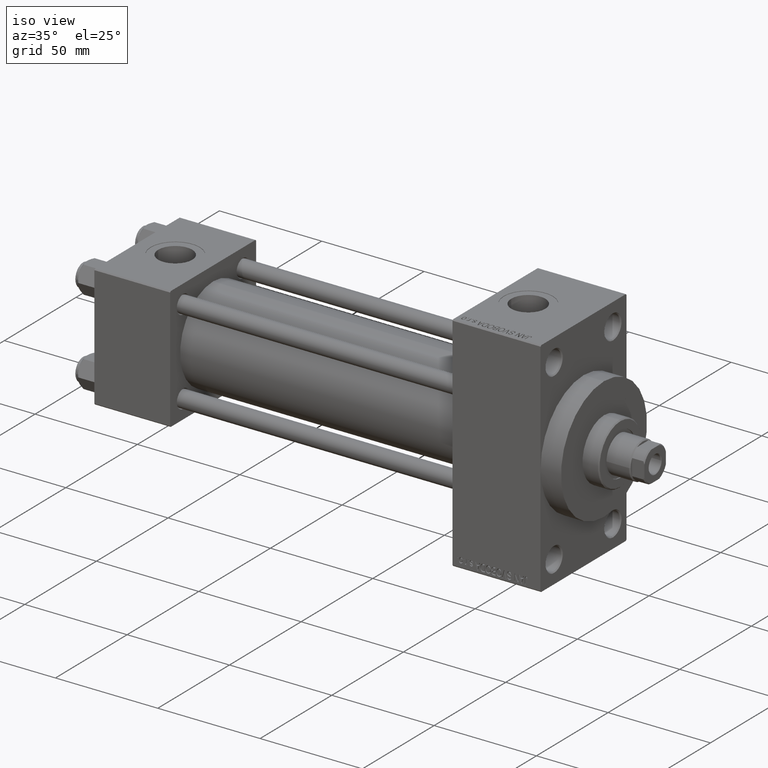
[diagram: clean part render]
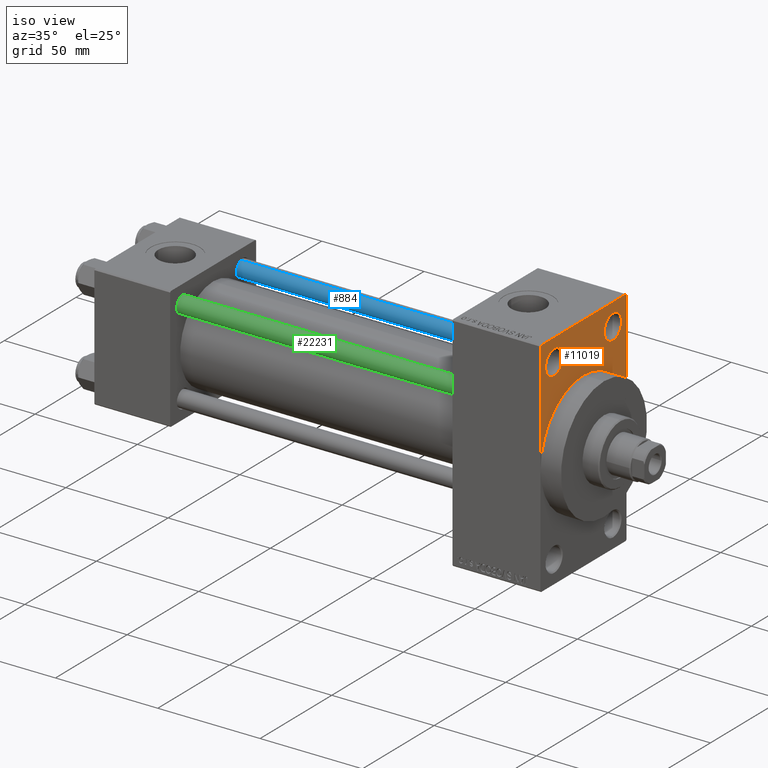
[diagram: same view with three faces highlighted in distinct colors, each labeled with its STEP entity id]
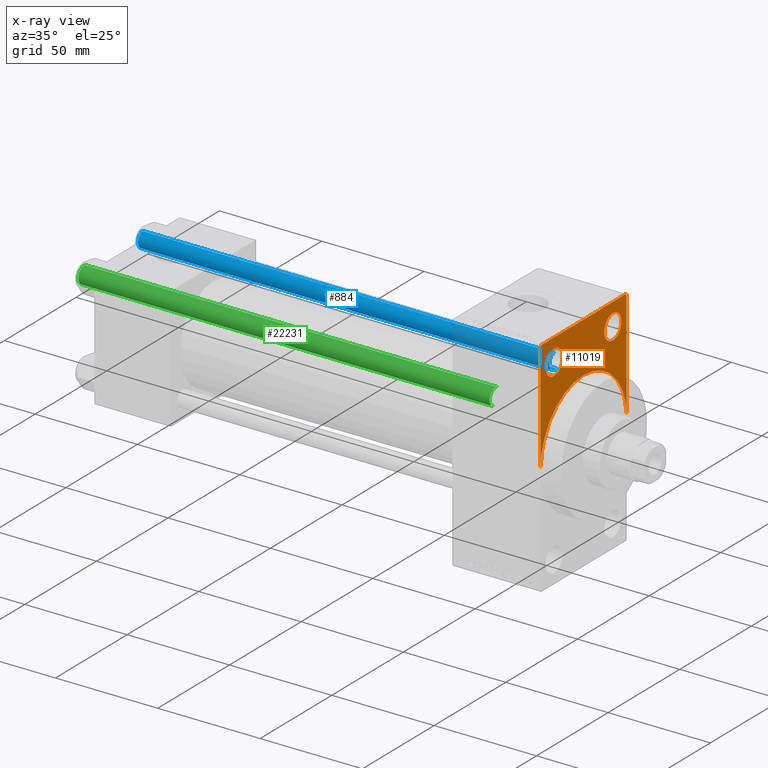
[diagram: x-ray of the same camera — body ghosted, the three highlighted faces saturated]
A machine part, iso view with three faces highlighted in distinct colors.
The next image is the same camera in x-ray (body ghosted, the three faces saturated) — at least one of them is partly hidden behind the body in this view.
Their STEP definitions:

[orange] entity #11019 — the highlighted planar face has unit normal (-1, 0, 0).
#2873 = EDGE_CURVE ( 'NONE', #38933, #22216, #42119, .T. ) ;
#3027 = EDGE_CURVE ( 'NONE', #10872, #10121, #15967, .T. ) ;
#4540 = AXIS2_PLACEMENT_3D ( 'NONE', #34424, #9583, #23684 ) ;
#4573 = DIRECTION ( 'NONE',  ( -1.000000000000000000, 0.000000000000000000, -0.000000000000000000 ) ) ;
#4917 = ORIENTED_EDGE ( 'NONE', *, *, #38871, .T. ) ;
#5412 = VECTOR ( 'NONE', #32607, 1000.000000000000000 ) ;
#5444 = LINE ( 'NONE', #20032, #38107 ) ;
#5648 = ORIENTED_EDGE ( 'NONE', *, *, #16416, .T. ) ;
#6281 = ORIENTED_EDGE ( 'NONE', *, *, #46970, .F. ) ;
#6297 = DIRECTION ( 'NONE',  ( 0.000000000000000000, 0.000000000000000000, 1.000000000000000000 ) ) ;
#6305 = CARTESIAN_POINT ( 'NONE',  ( 218.0000000000000284, 0.000000000000000000, 0.000000000000000000 ) ) ;
#6572 = AXIS2_PLACEMENT_3D ( 'NONE', #9553, #38213, #16722 ) ;
#6580 = EDGE_CURVE ( 'NONE', #22216, #35180, #29935, .T. ) ;
#7721 = CARTESIAN_POINT ( 'NONE',  ( 218.0000000000000284, -30.00000000000000000, 54.50000000000000000 ) ) ;
#7956 = DIRECTION ( 'NONE',  ( 0.000000000000000000, 0.000000000000000000, -1.000000000000000000 ) ) ;
#8144 = EDGE_CURVE ( 'NONE', #38352, #38171, #5444, .T. ) ;
#9370 = CARTESIAN_POINT ( 'NONE',  ( 218.0000000000000284, 20.50000000000000000, 37.49999999999987921 ) ) ;
#9553 = CARTESIAN_POINT ( 'NONE',  ( 218.0000000000000284, -20.50000000000000000, 43.50000000000000000 ) ) ;
#9583 = DIRECTION ( 'NONE',  ( -1.000000000000000000, 0.000000000000000000, -0.000000000000000000 ) ) ;
#10121 = VERTEX_POINT ( 'NONE', #9370 ) ;
#10389 = DIRECTION ( 'NONE',  ( 0.000000000000000000, -1.000000000000000000, 1.156482317317871478E-16 ) ) ;
#10564 = CARTESIAN_POINT ( 'NONE',  ( 218.0000000000000284, -20.50000000000000000, 37.49999999999987921 ) ) ;
#10872 = VERTEX_POINT ( 'NONE', #44543 ) ;
#11019 = ADVANCED_FACE ( 'NONE', ( #24710, #31875, #34974 ), #35451, .F. ) ;
#12066 = CARTESIAN_POINT ( 'NONE',  ( 218.0000000000000284, 29.49999999999996803, 54.49999999999999289 ) ) ;
#12766 = EDGE_LOOP ( 'NONE', ( #27633, #37874, #27768, #24484, #26090, #6281, #34531 ) ) ;
#13390 = DIRECTION ( 'NONE',  ( 1.000000000000000000, 0.000000000000000000, 0.000000000000000000 ) ) ;
#13516 = EDGE_CURVE ( 'NONE', #38171, #38933, #20906, .T. ) ;
#13985 = CARTESIAN_POINT ( 'NONE',  ( 218.0000000000000284, 29.99999999999999645, 54.49999999999999289 ) ) ;
#15338 = EDGE_LOOP ( 'NONE', ( #4917, #5648 ) ) ;
#15967 = CIRCLE ( 'NONE', #32737, 6.000000000000116351 ) ;
#16416 = EDGE_CURVE ( 'NONE', #35778, #39735, #27444, .T. ) ;
#16462 = CIRCLE ( 'NONE', #33961, 30.00000000000000000 ) ;
#16722 = DIRECTION ( 'NONE',  ( 0.000000000000000000, 0.000000000000000000, 1.000000000000000000 ) ) ;
#16978 = DIRECTION ( 'NONE',  ( 0.000000000000000000, 0.000000000000000000, -1.000000000000000000 ) ) ;
#16985 = VERTEX_POINT ( 'NONE', #24205 ) ;
#17280 = DIRECTION ( 'NONE',  ( 1.000000000000000000, 0.000000000000000000, 0.000000000000000000 ) ) ;
#17439 = CARTESIAN_POINT ( 'NONE',  ( 218.0000000000000284, 0.000000000000000000, 0.000000000000000000 ) ) ;
#17547 = DIRECTION ( 'NONE',  ( -0.000000000000000000, 0.000000000000000000, 1.000000000000000000 ) ) ;
#20032 = CARTESIAN_POINT ( 'NONE',  ( 218.0000000000000284, 29.49999999999996803, 54.49999999999999289 ) ) ;
#20906 = LINE ( 'NONE', #13985, #40680 ) ;
#21435 = CARTESIAN_POINT ( 'NONE',  ( 218.0000000000000284, -30.00000000000000000, 0.000000000000000000 ) ) ;
#22182 = EDGE_LOOP ( 'NONE', ( #27140, #41353 ) ) ;
#22216 = VERTEX_POINT ( 'NONE', #32883 ) ;
#22735 = CARTESIAN_POINT ( 'NONE',  ( 218.0000000000000284, 20.50000000000000000, 43.50000000000000000 ) ) ;
#23428 = CARTESIAN_POINT ( 'NONE',  ( 218.0000000000000284, -20.50000000000000000, 49.50000000000011369 ) ) ;
#23684 = DIRECTION ( 'NONE',  ( 0.000000000000000000, 0.000000000000000000, 1.000000000000000000 ) ) ;
#24112 = AXIS2_PLACEMENT_3D ( 'NONE', #38787, #27343, #6297 ) ;
#24205 = CARTESIAN_POINT ( 'NONE',  ( 218.0000000000000284, 30.00000000000000000, 0.000000000000000000 ) ) ;
#24484 = ORIENTED_EDGE ( 'NONE', *, *, #36584, .F. ) ;
#24710 = FACE_BOUND ( 'NONE', #15338, .T. ) ;
#25051 = CARTESIAN_POINT ( 'NONE',  ( 218.0000000000000284, -29.50000000000002842, 54.50000000000000000 ) ) ;
#26090 = ORIENTED_EDGE ( 'NONE', *, *, #26633, .F. ) ;
#26135 = AXIS2_PLACEMENT_3D ( 'NONE', #17439, #13390, #16978 ) ;
#26633 = EDGE_CURVE ( 'NONE', #16985, #31402, #40615, .T. ) ;
#27140 = ORIENTED_EDGE ( 'NONE', *, *, #38258, .T. ) ;
#27343 = DIRECTION ( 'NONE',  ( -1.000000000000000000, 0.000000000000000000, -0.000000000000000000 ) ) ;
#27444 = CIRCLE ( 'NONE', #4540, 6.000000000000116351 ) ;
#27633 = ORIENTED_EDGE ( 'NONE', *, *, #13516, .T. ) ;
#27768 = ORIENTED_EDGE ( 'NONE', *, *, #6580, .T. ) ;
#27805 = DIRECTION ( 'NONE',  ( -0.000000000000000000, -0.7071067811865450192, -0.7071067811865500152 ) ) ;
#28314 = LINE ( 'NONE', #32137, #5412 ) ;
#29935 = LINE ( 'NONE', #7721, #38071 ) ;
#30678 = CARTESIAN_POINT ( 'NONE',  ( 218.0000000000000284, -30.00000000000000000, 54.00000000000002842 ) ) ;
#31402 = VERTEX_POINT ( 'NONE', #32061 ) ;
#31727 = CIRCLE ( 'NONE', #24112, 6.000000000000116351 ) ;
#31837 = DIRECTION ( 'NONE',  ( 0.000000000000000000, 0.000000000000000000, -1.000000000000000000 ) ) ;
#31875 = FACE_BOUND ( 'NONE', #22182, .T. ) ;
#32061 = CARTESIAN_POINT ( 'NONE',  ( 218.0000000000000284, 0.000000000000000000, 30.00000000000000000 ) ) ;
#32137 = CARTESIAN_POINT ( 'NONE',  ( 218.0000000000000284, 29.99999999999999645, 54.49999999999999289 ) ) ;
#32607 = DIRECTION ( 'NONE',  ( 0.000000000000000000, 0.000000000000000000, -1.000000000000000000 ) ) ;
#32737 = AXIS2_PLACEMENT_3D ( 'NONE', #22735, #4573, #33725 ) ;
#32883 = CARTESIAN_POINT ( 'NONE',  ( 218.0000000000000284, -30.00000000000000000, 54.00000000000002842 ) ) ;
#33613 = AXIS2_PLACEMENT_3D ( 'NONE', #6305, #35676, #17547 ) ;
#33725 = DIRECTION ( 'NONE',  ( 0.000000000000000000, 0.000000000000000000, 1.000000000000000000 ) ) ;
#33961 = AXIS2_PLACEMENT_3D ( 'NONE', #35413, #17280, #31837 ) ;
#34021 = CIRCLE ( 'NONE', #6572, 6.000000000000116351 ) ;
#34424 = CARTESIAN_POINT ( 'NONE',  ( 218.0000000000000284, -20.50000000000000000, 43.50000000000000000 ) ) ;
#34531 = ORIENTED_EDGE ( 'NONE', *, *, #8144, .T. ) ;
#34591 = DIRECTION ( 'NONE',  ( 0.000000000000000000, -0.7071067811865474617, 0.7071067811865474617 ) ) ;
#34904 = VECTOR ( 'NONE', #27805, 1000.000000000000000 ) ;
#34974 = FACE_OUTER_BOUND ( 'NONE', #12766, .T. ) ;
#35180 = VERTEX_POINT ( 'NONE', #21435 ) ;
#35413 = CARTESIAN_POINT ( 'NONE',  ( 218.0000000000000284, 0.000000000000000000, 0.000000000000000000 ) ) ;
#35451 = PLANE ( 'NONE',  #33613 ) ;
#35676 = DIRECTION ( 'NONE',  ( -1.000000000000000000, 0.000000000000000000, -0.000000000000000000 ) ) ;
#35778 = VERTEX_POINT ( 'NONE', #23428 ) ;
#36584 = EDGE_CURVE ( 'NONE', #31402, #35180, #16462, .T. ) ;
#37874 = ORIENTED_EDGE ( 'NONE', *, *, #2873, .T. ) ;
#38071 = VECTOR ( 'NONE', #7956, 1000.000000000000000 ) ;
#38107 = VECTOR ( 'NONE', #34591, 1000.000000000000114 ) ;
#38171 = VERTEX_POINT ( 'NONE', #12066 ) ;
#38213 = DIRECTION ( 'NONE',  ( -1.000000000000000000, 0.000000000000000000, -0.000000000000000000 ) ) ;
#38258 = EDGE_CURVE ( 'NONE', #10121, #10872, #31727, .T. ) ;
#38352 = VERTEX_POINT ( 'NONE', #47122 ) ;
#38787 = CARTESIAN_POINT ( 'NONE',  ( 218.0000000000000284, 20.50000000000000000, 43.50000000000000000 ) ) ;
#38871 = EDGE_CURVE ( 'NONE', #39735, #35778, #34021, .T. ) ;
#38933 = VERTEX_POINT ( 'NONE', #25051 ) ;
#39735 = VERTEX_POINT ( 'NONE', #10564 ) ;
#40615 = CIRCLE ( 'NONE', #26135, 30.00000000000000000 ) ;
#40680 = VECTOR ( 'NONE', #10389, 1000.000000000000000 ) ;
#41353 = ORIENTED_EDGE ( 'NONE', *, *, #3027, .T. ) ;
#42119 = LINE ( 'NONE', #30678, #34904 ) ;
#44543 = CARTESIAN_POINT ( 'NONE',  ( 218.0000000000000284, 20.50000000000000000, 49.50000000000011369 ) ) ;
#46970 = EDGE_CURVE ( 'NONE', #38352, #16985, #28314, .T. ) ;
#47122 = CARTESIAN_POINT ( 'NONE',  ( 218.0000000000000284, 29.99999999999999645, 53.99999999999996447 ) ) ;

[blue] entity #884 — the highlighted cylindrical surface (edge-blend (fillet) strip) has radius 4 mm, axis along (-1, -0, 0).
#884 = ADVANCED_FACE ( 'NONE', ( #961 ), #19130, .T. ) ;
#961 = FACE_OUTER_BOUND ( 'NONE', #41189, .T. ) ;
#1588 = CIRCLE ( 'NONE', #32094, 4.000000000000000000 ) ;
#3558 = VERTEX_POINT ( 'NONE', #27696 ) ;
#3706 = AXIS2_PLACEMENT_3D ( 'NONE', #18891, #8364, #40620 ) ;
#3854 = CARTESIAN_POINT ( 'NONE',  ( 0.000000000000000000, 0.000000000000000000, 201.5000000000000000 ) ) ;
#3921 = AXIS2_PLACEMENT_3D ( 'NONE', #46806, #47035, #14343 ) ;
#4434 = VERTEX_POINT ( 'NONE', #28639 ) ;
#5096 = ORIENTED_EDGE ( 'NONE', *, *, #31341, .F. ) ;
#7053 = ORIENTED_EDGE ( 'NONE', *, *, #42156, .T. ) ;
#8364 = DIRECTION ( 'NONE',  ( -0.000000000000000000, -0.000000000000000000, -1.000000000000000000 ) ) ;
#10714 = CARTESIAN_POINT ( 'NONE',  ( -4.000000000000000000, 0.000000000000000000, 202.0000000000000000 ) ) ;
#10798 = DIRECTION ( 'NONE',  ( 1.000000000000000000, 0.000000000000000000, 0.000000000000000000 ) ) ;
#10954 = DIRECTION ( 'NONE',  ( -0.000000000000000000, -0.000000000000000000, -1.000000000000000000 ) ) ;
#13210 = LINE ( 'NONE', #42318, #33795 ) ;
#14150 = DIRECTION ( 'NONE',  ( -0.000000000000000000, -0.000000000000000000, -1.000000000000000000 ) ) ;
#14343 = DIRECTION ( 'NONE',  ( 1.000000000000000000, 0.000000000000000000, 0.000000000000000000 ) ) ;
#15350 = CIRCLE ( 'NONE', #3921, 4.000000000000000000 ) ;
#15843 = CARTESIAN_POINT ( 'NONE',  ( 4.000000000000000000, 4.898587196589412829E-16, 201.5000000000000000 ) ) ;
#16579 = ORIENTED_EDGE ( 'NONE', *, *, #46007, .T. ) ;
#17966 = DIRECTION ( 'NONE',  ( 0.000000000000000000, 0.000000000000000000, -1.000000000000000000 ) ) ;
#18891 = CARTESIAN_POINT ( 'NONE',  ( 0.000000000000000000, 0.000000000000000000, 202.0000000000000000 ) ) ;
#19130 = CYLINDRICAL_SURFACE ( 'NONE', #3706, 4.000000000000000000 ) ;
#20513 = VERTEX_POINT ( 'NONE', #23699 ) ;
#22414 = LINE ( 'NONE', #10714, #41759 ) ;
#23699 = CARTESIAN_POINT ( 'NONE',  ( -4.000000000000000000, 0.000000000000000000, 0.5000000000000004441 ) ) ;
#27696 = CARTESIAN_POINT ( 'NONE',  ( -4.000000000000000000, 0.000000000000000000, 201.5000000000000000 ) ) ;
#28639 = CARTESIAN_POINT ( 'NONE',  ( 4.000000000000000000, 4.898587196589412829E-16, 0.5000000000000004441 ) ) ;
#29264 = VERTEX_POINT ( 'NONE', #15843 ) ;
#30124 = ORIENTED_EDGE ( 'NONE', *, *, #33748, .T. ) ;
#31341 = EDGE_CURVE ( 'NONE', #29264, #4434, #13210, .T. ) ;
#32094 = AXIS2_PLACEMENT_3D ( 'NONE', #3854, #17966, #10798 ) ;
#33748 = EDGE_CURVE ( 'NONE', #20513, #4434, #15350, .T. ) ;
#33795 = VECTOR ( 'NONE', #14150, 1000.000000000000000 ) ;
#40620 = DIRECTION ( 'NONE',  ( -1.000000000000000000, 0.000000000000000000, 0.000000000000000000 ) ) ;
#41189 = EDGE_LOOP ( 'NONE', ( #5096, #16579, #7053, #30124 ) ) ;
#41759 = VECTOR ( 'NONE', #10954, 1000.000000000000000 ) ;
#42156 = EDGE_CURVE ( 'NONE', #3558, #20513, #22414, .T. ) ;
#42318 = CARTESIAN_POINT ( 'NONE',  ( 4.000000000000000000, 4.898587196589412829E-16, 202.0000000000000000 ) ) ;
#46007 = EDGE_CURVE ( 'NONE', #29264, #3558, #1588, .T. ) ;
#46806 = CARTESIAN_POINT ( 'NONE',  ( 0.000000000000000000, 0.000000000000000000, 0.5000000000000004441 ) ) ;
#47035 = DIRECTION ( 'NONE',  ( -0.000000000000000000, -0.000000000000000000, 1.000000000000000000 ) ) ;

[green] entity #22231 — the highlighted cylindrical surface (edge-blend (fillet) strip) has radius 4 mm, axis along (1, 0, 0).
#144 = DIRECTION ( 'NONE',  ( -0.000000000000000000, -0.000000000000000000, -1.000000000000000000 ) ) ;
#3020 = FACE_OUTER_BOUND ( 'NONE', #17825, .T. ) ;
#3558 = VERTEX_POINT ( 'NONE', #27696 ) ;
#3896 = AXIS2_PLACEMENT_3D ( 'NONE', #21177, #144, #17606 ) ;
#4434 = VERTEX_POINT ( 'NONE', #28639 ) ;
#9056 = CARTESIAN_POINT ( 'NONE',  ( 0.000000000000000000, 0.000000000000000000, 0.5000000000000004441 ) ) ;
#10204 = CYLINDRICAL_SURFACE ( 'NONE', #3896, 4.000000000000000000 ) ;
#10714 = CARTESIAN_POINT ( 'NONE',  ( -4.000000000000000000, 0.000000000000000000, 202.0000000000000000 ) ) ;
#10954 = DIRECTION ( 'NONE',  ( -0.000000000000000000, -0.000000000000000000, -1.000000000000000000 ) ) ;
#12037 = ORIENTED_EDGE ( 'NONE', *, *, #42156, .F. ) ;
#13210 = LINE ( 'NONE', #42318, #33795 ) ;
#14150 = DIRECTION ( 'NONE',  ( -0.000000000000000000, -0.000000000000000000, -1.000000000000000000 ) ) ;
#15843 = CARTESIAN_POINT ( 'NONE',  ( 4.000000000000000000, 4.898587196589412829E-16, 201.5000000000000000 ) ) ;
#17606 = DIRECTION ( 'NONE',  ( -1.000000000000000000, 0.000000000000000000, 0.000000000000000000 ) ) ;
#17825 = EDGE_LOOP ( 'NONE', ( #30126, #30099, #21491, #12037 ) ) ;
#20513 = VERTEX_POINT ( 'NONE', #23699 ) ;
#20760 = EDGE_CURVE ( 'NONE', #3558, #29264, #41939, .T. ) ;
#21177 = CARTESIAN_POINT ( 'NONE',  ( 0.000000000000000000, 0.000000000000000000, 202.0000000000000000 ) ) ;
#21491 = ORIENTED_EDGE ( 'NONE', *, *, #44001, .T. ) ;
#21992 = DIRECTION ( 'NONE',  ( 0.000000000000000000, 0.000000000000000000, -1.000000000000000000 ) ) ;
#22231 = ADVANCED_FACE ( 'NONE', ( #3020 ), #10204, .T. ) ;
#22414 = LINE ( 'NONE', #10714, #41759 ) ;
#23699 = CARTESIAN_POINT ( 'NONE',  ( -4.000000000000000000, 0.000000000000000000, 0.5000000000000004441 ) ) ;
#27696 = CARTESIAN_POINT ( 'NONE',  ( -4.000000000000000000, 0.000000000000000000, 201.5000000000000000 ) ) ;
#28639 = CARTESIAN_POINT ( 'NONE',  ( 4.000000000000000000, 4.898587196589412829E-16, 0.5000000000000004441 ) ) ;
#29001 = AXIS2_PLACEMENT_3D ( 'NONE', #43713, #21992, #33915 ) ;
#29264 = VERTEX_POINT ( 'NONE', #15843 ) ;
#30099 = ORIENTED_EDGE ( 'NONE', *, *, #31341, .T. ) ;
#30126 = ORIENTED_EDGE ( 'NONE', *, *, #20760, .T. ) ;
#31341 = EDGE_CURVE ( 'NONE', #29264, #4434, #13210, .T. ) ;
#33795 = VECTOR ( 'NONE', #14150, 1000.000000000000000 ) ;
#33915 = DIRECTION ( 'NONE',  ( 1.000000000000000000, 0.000000000000000000, 0.000000000000000000 ) ) ;
#37364 = CIRCLE ( 'NONE', #44200, 4.000000000000000000 ) ;
#41057 = DIRECTION ( 'NONE',  ( 1.000000000000000000, 0.000000000000000000, 0.000000000000000000 ) ) ;
#41759 = VECTOR ( 'NONE', #10954, 1000.000000000000000 ) ;
#41939 = CIRCLE ( 'NONE', #29001, 4.000000000000000000 ) ;
#42156 = EDGE_CURVE ( 'NONE', #3558, #20513, #22414, .T. ) ;
#42318 = CARTESIAN_POINT ( 'NONE',  ( 4.000000000000000000, 4.898587196589412829E-16, 202.0000000000000000 ) ) ;
#43713 = CARTESIAN_POINT ( 'NONE',  ( 0.000000000000000000, 0.000000000000000000, 201.5000000000000000 ) ) ;
#44001 = EDGE_CURVE ( 'NONE', #4434, #20513, #37364, .T. ) ;
#44200 = AXIS2_PLACEMENT_3D ( 'NONE', #9056, #44630, #41057 ) ;
#44630 = DIRECTION ( 'NONE',  ( -0.000000000000000000, -0.000000000000000000, 1.000000000000000000 ) ) ;